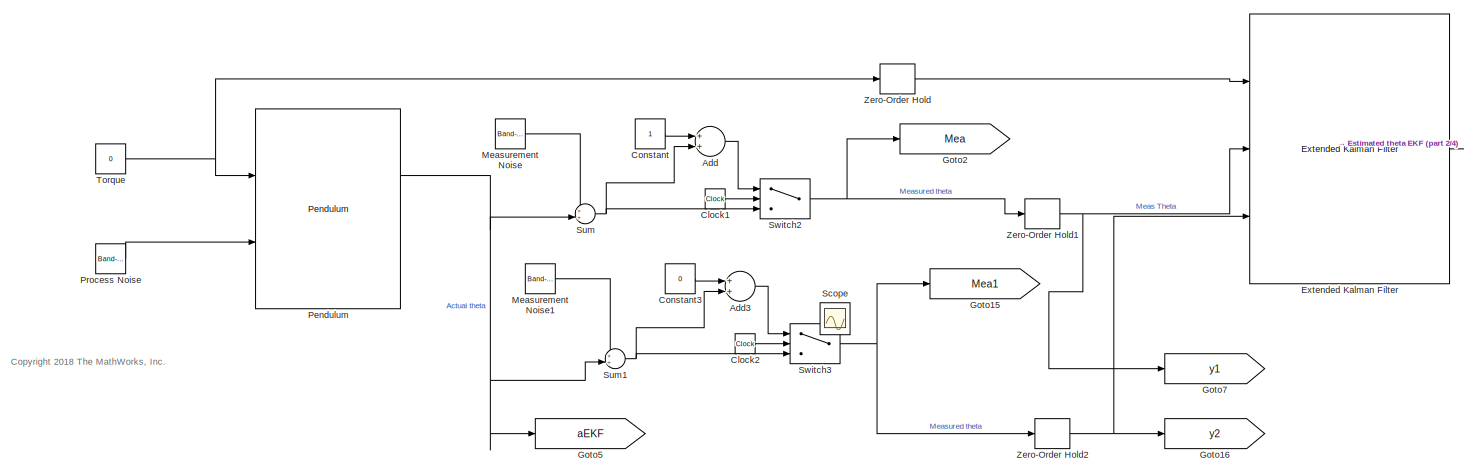
[diagram: root canvas - part 1/4, top left region]
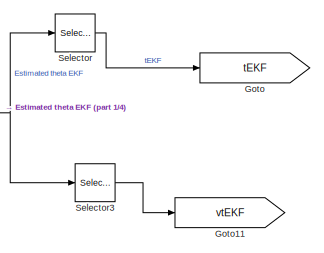
[diagram: root canvas - part 2/4, top center region]
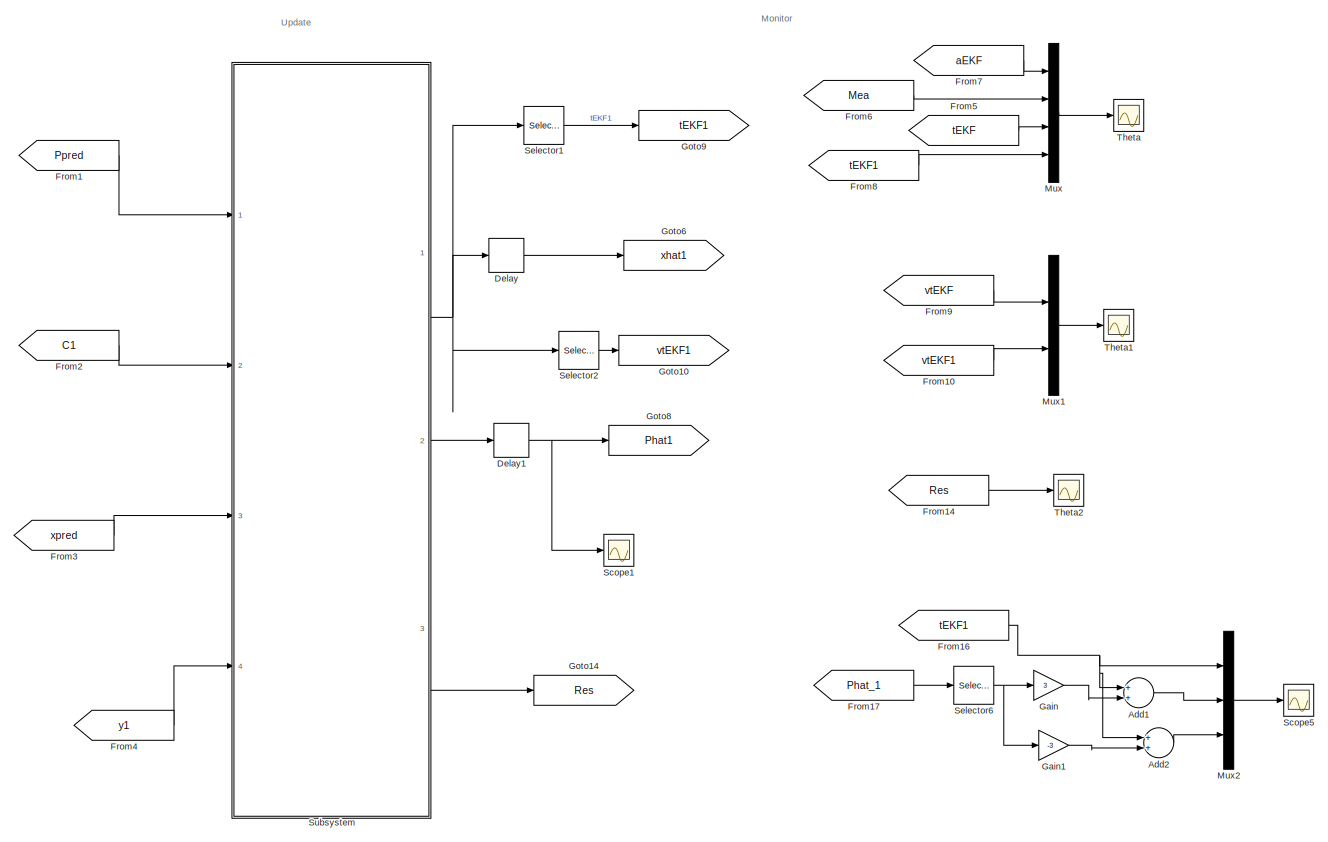
[diagram: root canvas - part 3/4, bottom right region]
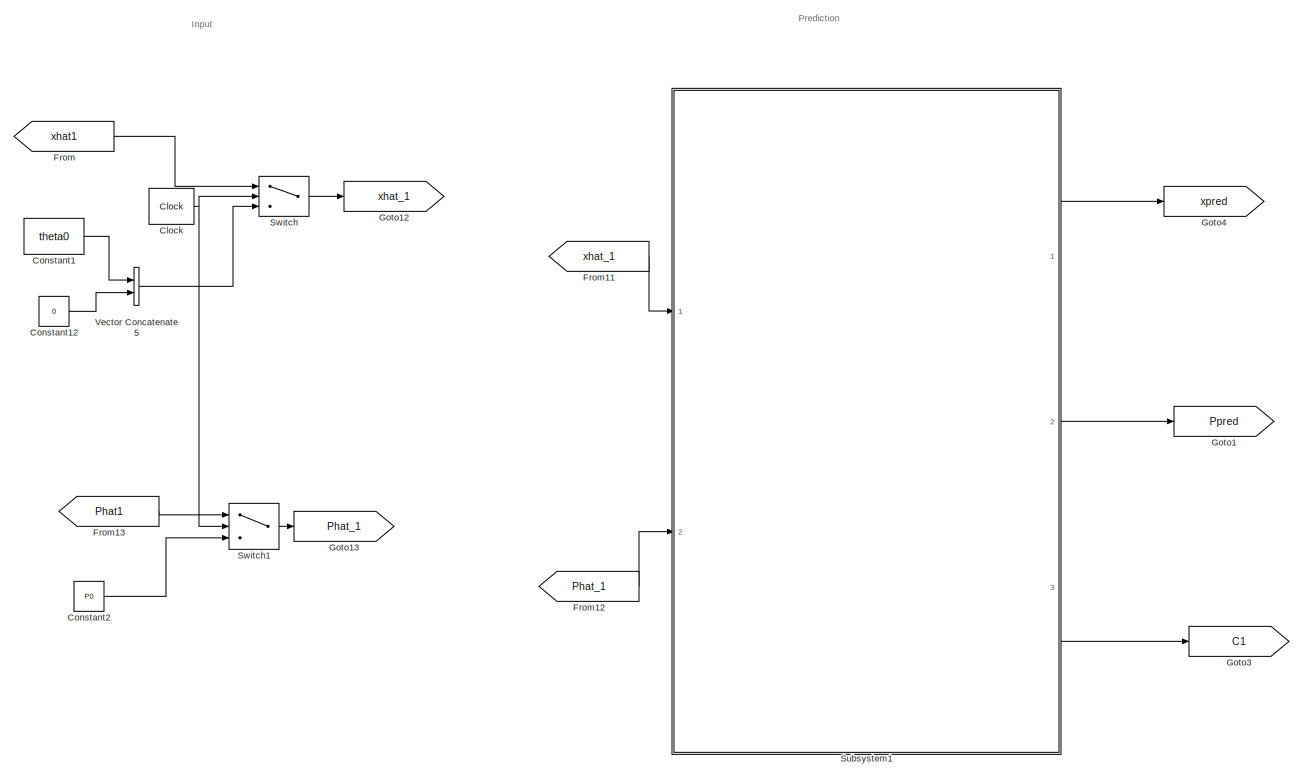
[diagram: root canvas - part 4/4, bottom left region]
MODEL slx_511fa673e2ee
KIND model
CONFIG AbsTol = auto
CONFIG EnableMultiTasking = off
CONFIG FixedStep = 0.001
CONFIG MaxStep = auto
CONFIG MinStep = auto
CONFIG RelTol = 1e-3
CONFIG SampleTimeConstraint = Unconstrained
CONFIG Solver = FixedStepAuto
CONFIG SolverName = FixedStepAuto
CONFIG StartTime = 0.0
CONFIG StopTime = 30
BLOCK [Sum] Add
  InputSameDT = off
  OutDataTypeStr = Inherit: Inherit via internal rule
  Ports = [2, 1]
  SaturateOnIntegerOverflow = off
BLOCK [Sum] Add1
  InputSameDT = off
  OutDataTypeStr = Inherit: Inherit via internal rule
  Ports = [2, 1]
  SaturateOnIntegerOverflow = off
BLOCK [Sum] Add2
  InputSameDT = off
  OutDataTypeStr = Inherit: Inherit via internal rule
  Ports = [2, 1]
  SaturateOnIntegerOverflow = off
BLOCK [Sum] Add3
  InputSameDT = off
  OutDataTypeStr = Inherit: Inherit via internal rule
  Ports = [2, 1]
  SaturateOnIntegerOverflow = off
BLOCK [Clock] Clock
  Decimation = 1000
  DisplayTime = on
BLOCK [Clock] Clock1
BLOCK [Clock] Clock2
BLOCK [Constant] Constant
BLOCK [Constant] Constant1
  Value = theta0
BLOCK [Constant] Constant12
  Value = 0
BLOCK [Constant] Constant2
  Value = P0
BLOCK [Constant] Constant3
  Value = 0
BLOCK [Delay] Delay
  DelayLength = 1
  InputPortMap = u0
  Ports = [1, 1]
  SampleTime = Ts
BLOCK [Delay] Delay1
  DelayLength = 1
  InputPortMap = u0
  Ports = [1, 1]
  SampleTime = Ts
BLOCK [Reference] Extended Kalman Filter  REF=sharedTrackingLibrary/Extended Kalman Filter
  Ports = [3, 1]
  SourceBlock = sharedTrackingLibrary/Extended Kalman Filter
  SourceProductBaseCode = CT
  SourceProductName = Control System Toolbox
  SourceType = Extended Kalman Filter
BLOCK [From] From
  GotoTag = xhat1
BLOCK [From] From1
  GotoTag = Ppred
BLOCK [From] From10
  GotoTag = vtEKF1
BLOCK [From] From11
  GotoTag = xhat_1
BLOCK [From] From12
  GotoTag = Phat_1
BLOCK [From] From13
  GotoTag = Phat1
BLOCK [From] From14
  GotoTag = Res
BLOCK [From] From16
  GotoTag = tEKF1
BLOCK [From] From17
  GotoTag = Phat_1
BLOCK [From] From2
  GotoTag = C1
BLOCK [From] From3
  GotoTag = xpred
BLOCK [From] From4
  GotoTag = y1
BLOCK [From] From5
  GotoTag = tEKF
BLOCK [From] From6
  GotoTag = Mea
BLOCK [From] From7
  GotoTag = aEKF
BLOCK [From] From8
  GotoTag = tEKF1
BLOCK [From] From9
  GotoTag = vtEKF
BLOCK [Gain] Gain
  Gain = 3
  OutDataTypeStr = Inherit: Inherit via internal rule
  ParamDataTypeStr = Inherit: Inherit via internal rule
  SaturateOnIntegerOverflow = off
BLOCK [Gain] Gain1
  Gain = -3
  OutDataTypeStr = Inherit: Inherit via internal rule
  ParamDataTypeStr = Inherit: Inherit via internal rule
  SaturateOnIntegerOverflow = off
BLOCK [Goto] Goto
  GotoTag = tEKF
BLOCK [Goto] Goto1
  GotoTag = Ppred
BLOCK [Goto] Goto10
  GotoTag = vtEKF1
BLOCK [Goto] Goto11
  GotoTag = vtEKF
BLOCK [Goto] Goto12
  GotoTag = xhat_1
BLOCK [Goto] Goto13
  GotoTag = Phat_1
BLOCK [Goto] Goto14
  GotoTag = Res
BLOCK [Goto] Goto15
  GotoTag = Mea1
BLOCK [Goto] Goto16
  GotoTag = y2
BLOCK [Goto] Goto2
  GotoTag = Mea
BLOCK [Goto] Goto3
  GotoTag = C1
BLOCK [Goto] Goto4
  GotoTag = xpred
BLOCK [Goto] Goto5
  GotoTag = aEKF
BLOCK [Goto] Goto6
  GotoTag = xhat1
BLOCK [Goto] Goto7
  GotoTag = y1
BLOCK [Goto] Goto8
  GotoTag = Phat1
BLOCK [Goto] Goto9
  GotoTag = tEKF1
BLOCK [Reference] Measurement Noise  REF=simulink/Sources/Band-Limited
White Noise
  Ports = [0, 1]
  SourceBlock = simulink/Sources/Band-Limited\nWhite Noise
  SourceProductBaseCode = SL
  SourceProductName = Simulink
  SourceType = Band-Limited White Noise.
BLOCK [Reference] Measurement Noise1  REF=simulink/Sources/Band-Limited
White Noise
  Ports = [0, 1]
  SourceBlock = simulink/Sources/Band-Limited\nWhite Noise
  SourceProductBaseCode = SL
  SourceProductName = Simulink
  SourceType = Band-Limited White Noise.
BLOCK [Mux] Mux
  DisplayOption = bar
  Ports = [4, 1]
BLOCK [Mux] Mux1
  DisplayOption = bar
  Inputs = 2
  Ports = [2, 1]
BLOCK [Mux] Mux2
  DisplayOption = bar
  Inputs = 3
  Ports = [3, 1]
BLOCK [Reference] Pendulum  REF=Meldas_Library/Pendulum
  Ports = [2, 2]
  SourceBlock = Meldas_Library/Pendulum
BLOCK [Reference] Process Noise  REF=simulink/Sources/Band-Limited
White Noise
  Ports = [0, 1]
  SourceBlock = simulink/Sources/Band-Limited\nWhite Noise
  SourceProductBaseCode = SL
  SourceProductName = Simulink
  SourceType = Band-Limited White Noise.
BLOCK [Scope] Scope
  Floating = off
  IOType = viewer
  NumInputPorts = 1
  Ports = []
  ScopeSpecificationString = Simulink.scopes.TimeScopeBlockCfg('CurrentConfiguration', extmgr.ConfigurationSet(extmgr.Configuration('Core','General UI',true,'FigureColor',[0.941176470588235 0.941176470588235 0.941176470588235]),extmgr.Configuration('Core','Source UI',true),extmgr.Configuration('Sources','WiredSimulink',true),extmgr.Configuration('Visuals','Time Domain',true,'SerializedDisplays',{struct('MinYLimReal','-83.8359...<+2482ch>
BLOCK [Scope] Scope1
  Floating = off
  NumInputPorts = 1
  Ports = [1]
  ScopeSpecificationString = Simulink.scopes.TimeScopeBlockCfg('CurrentConfiguration', extmgr.ConfigurationSet(extmgr.Configuration('Core','General UI',true),extmgr.Configuration('Core','Source UI',true),extmgr.Configuration('Sources','WiredSimulink',true,'DataLoggingVariableName','ScopeData1'),extmgr.Configuration('Visuals','Time Domain',true,'SerializedDisplays',{struct('MinYLimReal','-0.0017','MaxYLimReal','0.01319','YLabe...<+1423ch>
BLOCK [Scope] Scope5
  Floating = off
  NumInputPorts = 1
  Ports = [1]
  ScopeSpecificationString = Simulink.scopes.TimeScopeBlockCfg('CurrentConfiguration', extmgr.ConfigurationSet(extmgr.Configuration('Core','General UI',true),extmgr.Configuration('Core','Source UI',true),extmgr.Configuration('Sources','WiredSimulink',true,'DataLoggingVariableName','ScopeData16'),extmgr.Configuration('Visuals','Time Domain',true,'SerializedDisplays',{struct('MinYLimReal','1.57413','MaxYLimReal','1.77295','YLab...<+1542ch>
BLOCK [Selector] Selector
  IndexOptions = Index vector (dialog)
  Indices = 1
  InputPortWidth = 2
  OutputSizes = 1
  Ports = [1, 1]
BLOCK [Selector] Selector1
  IndexOptions = Index vector (dialog)
  Indices = 1
  InputPortWidth = 2
  OutputSizes = 1
  Ports = [1, 1]
BLOCK [Selector] Selector2
  IndexOptions = Index vector (dialog)
  Indices = 2
  InputPortWidth = 2
  OutputSizes = 1
  Ports = [1, 1]
BLOCK [Selector] Selector3
  IndexOptions = Index vector (dialog)
  Indices = 2
  InputPortWidth = 2
  OutputSizes = 1
  Ports = [1, 1]
BLOCK [Selector] Selector6
  IndexOptions = Index vector (dialog),Index vector (dialog)
  Indices = 1,1
  InputPortWidth = 3
  NumberOfDimensions = 2
  OutputSizes = 1,1
  Ports = [1, 1]
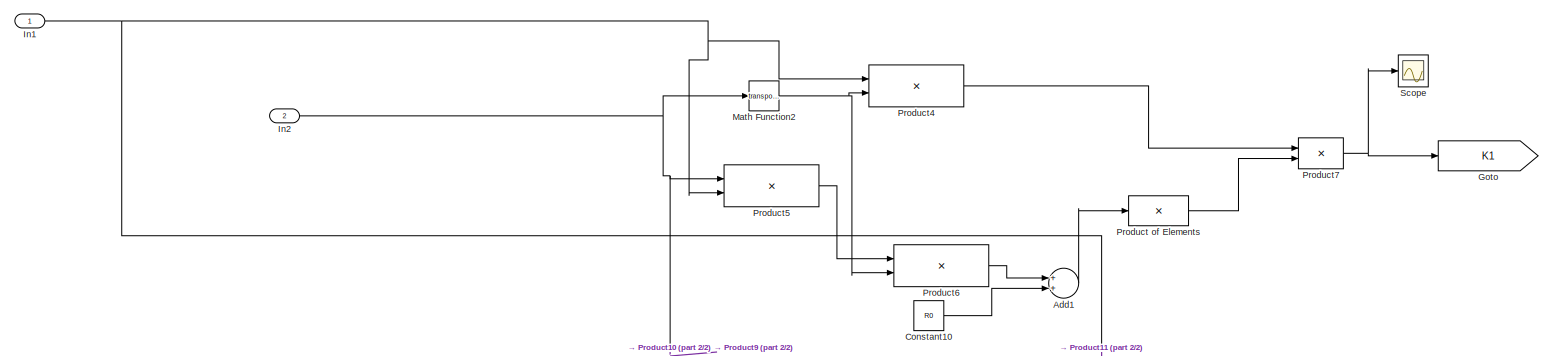
[diagram: Subsystem - part 1/2, full width, top band]
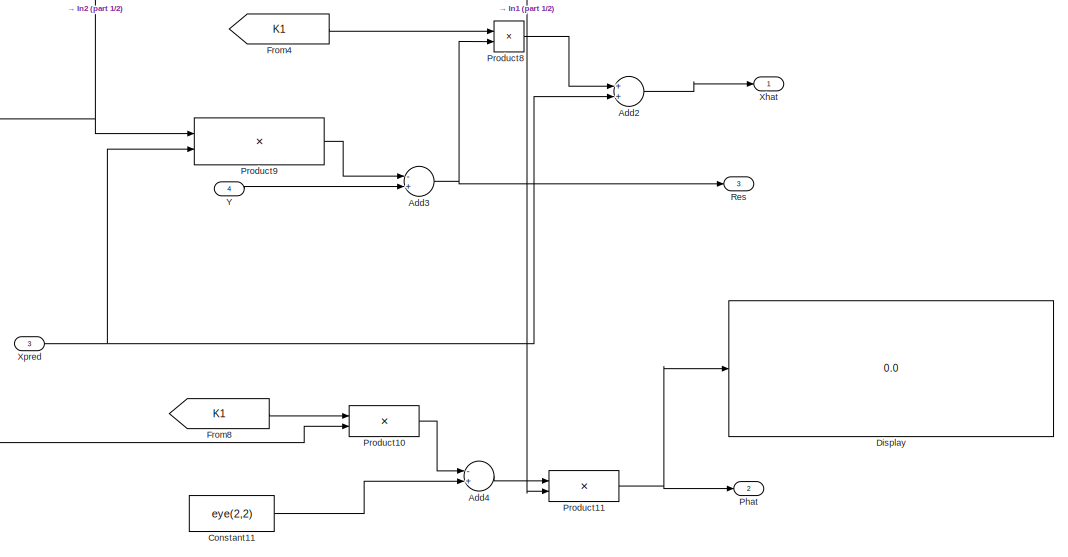
[diagram: Subsystem - part 2/2, bottom right region]
BLOCK [SubSystem] Subsystem
  Ports = [4, 3]
  RequestExecContextInheritance = off
BLOCK [Sum] Subsystem/Add1
  InputSameDT = off
  OutDataTypeStr = Inherit: Inherit via internal rule
  Ports = [2, 1]
  SaturateOnIntegerOverflow = off
BLOCK [Sum] Subsystem/Add2
  InputSameDT = off
  OutDataTypeStr = Inherit: Inherit via internal rule
  Ports = [2, 1]
  SaturateOnIntegerOverflow = off
BLOCK [Sum] Subsystem/Add3
  InputSameDT = off
  Inputs = -+
  OutDataTypeStr = Inherit: Inherit via internal rule
  Ports = [2, 1]
  SaturateOnIntegerOverflow = off
BLOCK [Sum] Subsystem/Add4
  InputSameDT = off
  Inputs = -+
  OutDataTypeStr = Inherit: Inherit via internal rule
  Ports = [2, 1]
  SaturateOnIntegerOverflow = off
BLOCK [Constant] Subsystem/Constant10
  Value = R0
BLOCK [Constant] Subsystem/Constant11
  Value = eye(2,2)
BLOCK [Display] Subsystem/Display
  Decimation = 1
  Ports = [1]
BLOCK [From] Subsystem/From4
  GotoTag = K1
BLOCK [From] Subsystem/From8
  GotoTag = K1
BLOCK [Goto] Subsystem/Goto
  GotoTag = K1
BLOCK [Inport] Subsystem/In1
  IconDisplay = Port number
BLOCK [Inport] Subsystem/In2
  IconDisplay = Port number
  Port = 2
BLOCK [Math] Subsystem/Math Function2
  Operator = transpose
  Ports = [1, 1]
BLOCK [Outport] Subsystem/Phat 
  IconDisplay = Port number
  Port = 2
BLOCK [Product] Subsystem/Product of Elements
  InputSameDT = off
  Inputs = /
  Multiplication = Matrix(*)
  OutDataTypeStr = Inherit: Inherit via internal rule
  Ports = [1, 1]
  RndMeth = Floor
  SaturateOnIntegerOverflow = off
BLOCK [Product] Subsystem/Product10
  InputSameDT = off
  Multiplication = Matrix(*)
  OutDataTypeStr = Inherit: Inherit via internal rule
  Ports = [2, 1]
  RndMeth = Floor
  SaturateOnIntegerOverflow = off
BLOCK [Product] Subsystem/Product11
  InputSameDT = off
  Multiplication = Matrix(*)
  OutDataTypeStr = Inherit: Inherit via internal rule
  Ports = [2, 1]
  RndMeth = Floor
  SaturateOnIntegerOverflow = off
BLOCK [Product] Subsystem/Product4
  InputSameDT = off
  Multiplication = Matrix(*)
  OutDataTypeStr = Inherit: Inherit via internal rule
  Ports = [2, 1]
  RndMeth = Floor
  SaturateOnIntegerOverflow = off
BLOCK [Product] Subsystem/Product5
  InputSameDT = off
  Multiplication = Matrix(*)
  OutDataTypeStr = Inherit: Inherit via internal rule
  Ports = [2, 1]
  RndMeth = Floor
  SaturateOnIntegerOverflow = off
BLOCK [Product] Subsystem/Product6
  InputSameDT = off
  Multiplication = Matrix(*)
  OutDataTypeStr = Inherit: Inherit via internal rule
  Ports = [2, 1]
  RndMeth = Floor
  SaturateOnIntegerOverflow = off
BLOCK [Product] Subsystem/Product7
  InputSameDT = off
  Multiplication = Matrix(*)
  OutDataTypeStr = Inherit: Inherit via internal rule
  Ports = [2, 1]
  RndMeth = Floor
  SaturateOnIntegerOverflow = off
BLOCK [Product] Subsystem/Product8
  InputSameDT = off
  Multiplication = Matrix(*)
  OutDataTypeStr = Inherit: Inherit via internal rule
  Ports = [2, 1]
  RndMeth = Floor
  SaturateOnIntegerOverflow = off
BLOCK [Product] Subsystem/Product9
  InputSameDT = off
  Multiplication = Matrix(*)
  OutDataTypeStr = Inherit: Inherit via internal rule
  Ports = [2, 1]
  RndMeth = Floor
  SaturateOnIntegerOverflow = off
BLOCK [Outport] Subsystem/Res
  IconDisplay = Port number
  Port = 3
  PortDimensions = 1
BLOCK [Scope] Subsystem/Scope
  Floating = off
  NumInputPorts = 1
  Ports = [1]
  ScopeSpecificationString = Simulink.scopes.TimeScopeBlockCfg('CurrentConfiguration', extmgr.ConfigurationSet(extmgr.Configuration('Core','General UI',true),extmgr.Configuration('Core','Source UI',true),extmgr.Configuration('Sources','WiredSimulink',true,'DataLoggingVariableName','ScopeData2'),extmgr.Configuration('Visuals','Time Domain',true,'SerializedDisplays',{struct('MinYLimReal','-1.39762','MaxYLimReal','11.29266','YLa...<+1500ch>
BLOCK [Outport] Subsystem/Xhat
  IconDisplay = Port number
  PortDimensions = [2,1]
BLOCK [Inport] Subsystem/Xpred
  IconDisplay = Port number
  Port = 3
BLOCK [Inport] Subsystem/Y 
  IconDisplay = Port number
  Port = 4
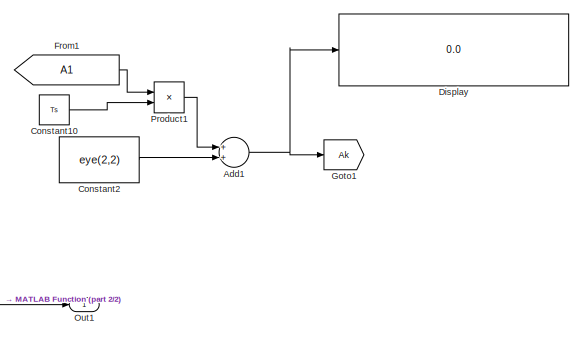
[diagram: Subsystem1 - part 1/2, top right region]
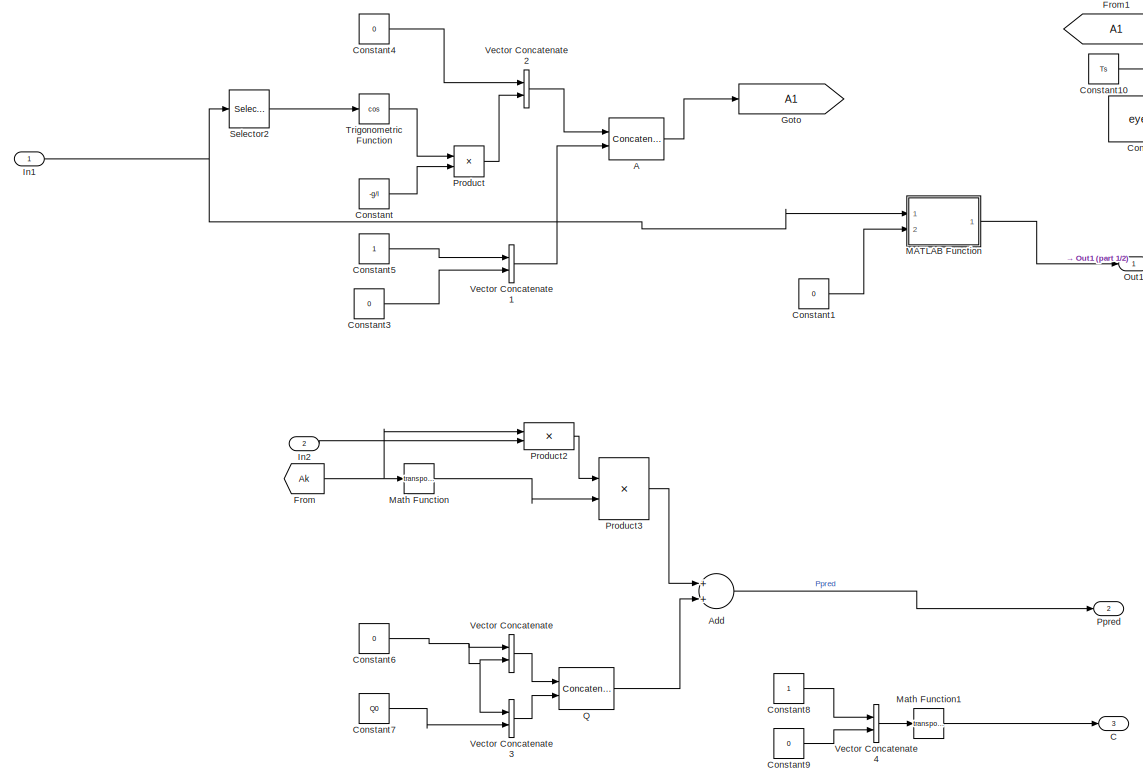
[diagram: Subsystem1 - part 2/2, center side, full height]
BLOCK [SubSystem] Subsystem1
  Ports = [2, 3]
  RequestExecContextInheritance = off
BLOCK [Concatenate] Subsystem1/A
  ConcatenateDimension = 2
  Mode = Multidimensional array
  Ports = [2, 1]
BLOCK [Sum] Subsystem1/Add
  InputSameDT = off
  OutDataTypeStr = Inherit: Inherit via internal rule
  Ports = [2, 1]
  SaturateOnIntegerOverflow = off
BLOCK [Sum] Subsystem1/Add1
  InputSameDT = off
  OutDataTypeStr = Inherit: Inherit via internal rule
  Ports = [2, 1]
  SaturateOnIntegerOverflow = off
BLOCK [Outport] Subsystem1/C 
  IconDisplay = Port number
  Port = 3
BLOCK [Constant] Subsystem1/Constant
  Value = -g/l
BLOCK [Constant] Subsystem1/Constant1
  Value = 0
BLOCK [Constant] Subsystem1/Constant10
  Value = Ts
BLOCK [Constant] Subsystem1/Constant2
  Value = eye(2,2)
BLOCK [Constant] Subsystem1/Constant3
  Value = 0
BLOCK [Constant] Subsystem1/Constant4
  Value = 0
BLOCK [Constant] Subsystem1/Constant5
BLOCK [Constant] Subsystem1/Constant6
  Value = 0
BLOCK [Constant] Subsystem1/Constant7
  Value = Q0
BLOCK [Constant] Subsystem1/Constant8
BLOCK [Constant] Subsystem1/Constant9
  Value = 0
BLOCK [Display] Subsystem1/Display
  Decimation = 1
  Ports = [1]
BLOCK [From] Subsystem1/From
  GotoTag = Ak
BLOCK [From] Subsystem1/From1
  GotoTag = A1
BLOCK [Goto] Subsystem1/Goto
  GotoTag = A1
BLOCK [Goto] Subsystem1/Goto1
  GotoTag = Ak
BLOCK [Inport] Subsystem1/In1
  IconDisplay = Port number
BLOCK [Inport] Subsystem1/In2
  IconDisplay = Port number
  Port = 2
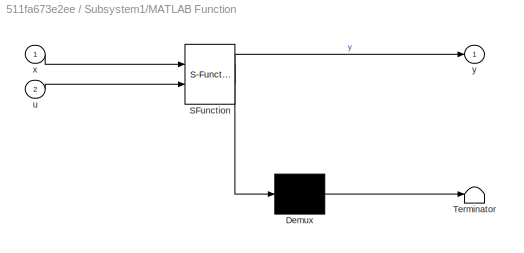
BLOCK [SubSystem] Subsystem1/MATLAB Function
  ErrorFcn = Stateflow.Translate.translate
  PermitHierarchicalResolution = ExplicitOnly
  Ports = [2, 1]
  RequestExecContextInheritance = off
  SFBlockType = MATLAB Function
  TreatAsAtomicUnit = on
BLOCK [Demux] Subsystem1/MATLAB Function/ Demux 
  Outputs = 1
  Ports = [1, 1]
BLOCK [S-Function] Subsystem1/MATLAB Function/ SFunction 
  EnableBusSupport = on
  FunctionName = sf_sfun
  PortCounts = [2 2]
  Ports = [2, 2]
  SFcnIsStateOwnerBlock = off
  SFunctionDeploymentMode = off
  Tag = Stateflow S-Function Kalman_Filter_Simulink_Example_EKF 2
BLOCK [Terminator] Subsystem1/MATLAB Function/ Terminator 
BLOCK [Inport] Subsystem1/MATLAB Function/u
  IconDisplay = Port number
  Port = 2
BLOCK [Inport] Subsystem1/MATLAB Function/x
  IconDisplay = Port number
BLOCK [Outport] Subsystem1/MATLAB Function/y
  IconDisplay = Port number
BLOCK [Math] Subsystem1/Math Function
  Operator = transpose
  Ports = [1, 1]
BLOCK [Math] Subsystem1/Math Function1
  Operator = transpose
  Ports = [1, 1]
BLOCK [Outport] Subsystem1/Out1
  IconDisplay = Port number
BLOCK [Outport] Subsystem1/Ppred
  IconDisplay = Port number
  Port = 2
BLOCK [Product] Subsystem1/Product
  InputSameDT = off
  OutDataTypeStr = Inherit: Inherit via internal rule
  Ports = [2, 1]
  RndMeth = Floor
  SaturateOnIntegerOverflow = off
BLOCK [Product] Subsystem1/Product1
  InputSameDT = off
  OutDataTypeStr = Inherit: Inherit via internal rule
  Ports = [2, 1]
  RndMeth = Floor
  SaturateOnIntegerOverflow = off
BLOCK [Product] Subsystem1/Product2
  InputSameDT = off
  Multiplication = Matrix(*)
  OutDataTypeStr = Inherit: Inherit via internal rule
  Ports = [2, 1]
  RndMeth = Floor
  SaturateOnIntegerOverflow = off
BLOCK [Product] Subsystem1/Product3
  InputSameDT = off
  Multiplication = Matrix(*)
  OutDataTypeStr = Inherit: Inherit via internal rule
  Ports = [2, 1]
  RndMeth = Floor
  SaturateOnIntegerOverflow = off
BLOCK [Concatenate] Subsystem1/Q
  ConcatenateDimension = 2
  Mode = Multidimensional array
  Ports = [2, 1]
BLOCK [Selector] Subsystem1/Selector2
  IndexOptions = Index vector (dialog)
  Indices = 1
  InputPortWidth = 2
  OutputSizes = 1
  Ports = [1, 1]
BLOCK [Trigonometry] Subsystem1/Trigonometric Function
  Operator = cos
  Ports = [1, 1]
BLOCK [Concatenate] Subsystem1/Vector Concatenate
  Ports = [2, 1]
BLOCK [Concatenate] Subsystem1/Vector Concatenate1
  Ports = [2, 1]
BLOCK [Concatenate] Subsystem1/Vector Concatenate2
  Ports = [2, 1]
BLOCK [Concatenate] Subsystem1/Vector Concatenate3
  Ports = [2, 1]
BLOCK [Concatenate] Subsystem1/Vector Concatenate4
  Ports = [2, 1]
BLOCK [Sum] Sum
  IconShape = round
  InputSameDT = off
  Inputs = ++|
  OutDataTypeStr = Inherit: Inherit via internal rule
  Ports = [2, 1]
  SaturateOnIntegerOverflow = off
BLOCK [Sum] Sum1
  IconShape = round
  InputSameDT = off
  Inputs = ++|
  OutDataTypeStr = Inherit: Inherit via internal rule
  Ports = [2, 1]
  SaturateOnIntegerOverflow = off
BLOCK [Switch] Switch
  InputSameDT = off
  SaturateOnIntegerOverflow = off
  Threshold = Ts
BLOCK [Switch] Switch1
  InputSameDT = off
  SaturateOnIntegerOverflow = off
  Threshold = Ts
BLOCK [Switch] Switch2
  Criteria = u2 > Threshold
  InputSameDT = off
  SaturateOnIntegerOverflow = off
  Threshold = 20
BLOCK [Switch] Switch3
  Criteria = u2 > Threshold
  InputSameDT = off
  SaturateOnIntegerOverflow = off
  Threshold = 20
BLOCK [Scope] Theta
  Floating = off
  NumInputPorts = 1
  Ports = [1]
  ScopeSpecificationString = Simulink.scopes.TimeScopeBlockCfg('CurrentConfiguration', extmgr.ConfigurationSet(extmgr.Configuration('Core','General UI',true),extmgr.Configuration('Core','Source UI',true),extmgr.Configuration('Sources','WiredSimulink',true,'DataLoggingVariableName','ScopeData1'),extmgr.Configuration('Visuals','Time Domain',true,'SerializedDisplays',{struct('MinYLimReal','1.48588','MaxYLimReal','1.72677','YLabe...<+1933ch>
BLOCK [Scope] Theta1
  Floating = off
  NumInputPorts = 1
  Ports = [1]
  ScopeSpecificationString = Simulink.scopes.TimeScopeBlockCfg('CurrentConfiguration', extmgr.ConfigurationSet(extmgr.Configuration('Core','General UI',true),extmgr.Configuration('Core','Source UI',true),extmgr.Configuration('Sources','WiredSimulink',true,'DataLoggingVariableName','ScopeData2'),extmgr.Configuration('Visuals','Time Domain',true,'SerializedDisplays',{struct('MinYLimReal','5.83089','MaxYLimReal','6.62417','YLabe...<+1563ch>
BLOCK [Scope] Theta2
  Floating = off
  NumInputPorts = 1
  Ports = [1]
  ScopeSpecificationString = Simulink.scopes.TimeScopeBlockCfg('CurrentConfiguration', extmgr.ConfigurationSet(extmgr.Configuration('Core','General UI',true),extmgr.Configuration('Core','Source UI',true),extmgr.Configuration('Sources','WiredSimulink',true,'DataLoggingVariableName','ScopeData3'),extmgr.Configuration('Visuals','Time Domain',true,'SerializedDisplays',{struct('MinYLimReal','-0.16681','MaxYLimReal','0.71271','YLab...<+1555ch>
BLOCK [Constant] Torque
  Value = 0
BLOCK [Concatenate] Vector Concatenate5
  Ports = [2, 1]
BLOCK [ZeroOrderHold] Zero-Order Hold
  SampleTime = Ts
BLOCK [ZeroOrderHold] Zero-Order Hold1
  SampleTime = Ts
BLOCK [ZeroOrderHold] Zero-Order Hold2
  SampleTime = Ts
ANNOTATION (root): Prediction
ANNOTATION (root): Update
ANNOTATION (root): <copyright redacted>
ANNOTATION (root): Input
ANNOTATION (root): Monitor
LINE Add1:1 -> Mux2:2
LINE Add2:1 -> Mux2:3
LINE Add3:1 -> Switch3:1
LINE Add:1 -> Switch2:1
LINE Clock1:1 -> Switch2:2
LINE Clock2:1 -> Switch3:2
NET Clock:1 -> Switch1:2, Switch:2
LINE Constant12:1 -> Vector Concatenate5:2
LINE Constant1:1 -> Vector Concatenate5:1
LINE Constant2:1 -> Switch1:3
LINE Constant3:1 -> Add3:1
LINE Constant:1 -> Add:1
NET Delay1:1 -> Goto8:1, Scope1:1
LINE Delay:1 -> Goto6:1
NET Extended Kalman Filter:1 -> Selector3:1, Selector:1
LINE From10:1 -> Mux1:2
LINE From11:1 -> Subsystem1:1
LINE From12:1 -> Subsystem1:2
LINE From13:1 -> Switch1:1
LINE From14:1 -> Theta2:1
NET From16:1 -> Add1:1, Add2:1, Mux2:1
LINE From17:1 -> Selector6:1
LINE From1:1 -> Subsystem:1
LINE From2:1 -> Subsystem:2
LINE From3:1 -> Subsystem:3
LINE From4:1 -> Subsystem:4
LINE From5:1 -> Mux:3
LINE From6:1 -> Mux:2
LINE From7:1 -> Mux:1
LINE From8:1 -> Mux:4
LINE From9:1 -> Mux1:1
LINE From:1 -> Switch:1
LINE Gain1:1 -> Add2:2
LINE Gain:1 -> Add1:2
LINE Measurement Noise1:1 -> Sum1:1
LINE Measurement Noise:1 -> Sum:1
LINE Mux1:1 -> Theta1:1
LINE Mux2:1 -> Scope5:1
LINE Mux:1 -> Theta:1
NET Pendulum:1 -> Goto5:1, Sum1:2, Sum:2
LINE Process Noise:1 -> Pendulum:2
LINE Selector1:1 -> Goto9:1
LINE Selector2:1 -> Goto10:1
LINE Selector3:1 -> Goto11:1
NET Selector6:1 -> Gain1:1, Gain:1
LINE Selector:1 -> Goto:1
LINE Subsystem/Add1:1 -> Subsystem/Product of Elements:1
LINE Subsystem/Add2:1 -> Subsystem/Xhat:1
NET Subsystem/Add3:1 -> Subsystem/Product8:2, Subsystem/Res:1
LINE Subsystem/Add4:1 -> Subsystem/Product11:1
LINE Subsystem/Constant10:1 -> Subsystem/Add1:2
LINE Subsystem/Constant11:1 -> Subsystem/Add4:2
LINE Subsystem/From4:1 -> Subsystem/Product8:1
LINE Subsystem/From8:1 -> Subsystem/Product10:1
NET Subsystem/In1:1 -> Subsystem/Product11:2, Subsystem/Product4:1, Subsystem/Product5:2
NET Subsystem/In2:1 -> Subsystem/Math Function2:1, Subsystem/Product10:2, Subsystem/Product5:1, Subsystem/Product9:1
NET Subsystem/Math Function2:1 -> Subsystem/Product4:2, Subsystem/Product6:2
LINE Subsystem/Product of Elements:1 -> Subsystem/Product7:2
LINE Subsystem/Product10:1 -> Subsystem/Add4:1
NET Subsystem/Product11:1 -> Subsystem/Display:1, Subsystem/Phat :1
LINE Subsystem/Product4:1 -> Subsystem/Product7:1
LINE Subsystem/Product5:1 -> Subsystem/Product6:1
LINE Subsystem/Product6:1 -> Subsystem/Add1:1
NET Subsystem/Product7:1 -> Subsystem/Goto:1, Subsystem/Scope:1
LINE Subsystem/Product8:1 -> Subsystem/Add2:1
LINE Subsystem/Product9:1 -> Subsystem/Add3:1
NET Subsystem/Xpred:1 -> Subsystem/Add2:2, Subsystem/Product9:2
LINE Subsystem/Y :1 -> Subsystem/Add3:2
LINE Subsystem1/A:1 -> Subsystem1/Goto:1
NET Subsystem1/Add1:1 -> Subsystem1/Display:1, Subsystem1/Goto1:1
LINE Subsystem1/Add:1 -> Subsystem1/Ppred:1
LINE Subsystem1/Constant10:1 -> Subsystem1/Product1:2
LINE Subsystem1/Constant1:1 -> Subsystem1/MATLAB Function:2
LINE Subsystem1/Constant2:1 -> Subsystem1/Add1:2
LINE Subsystem1/Constant3:1 -> Subsystem1/Vector Concatenate1:2
LINE Subsystem1/Constant4:1 -> Subsystem1/Vector Concatenate2:1
LINE Subsystem1/Constant5:1 -> Subsystem1/Vector Concatenate1:1
NET Subsystem1/Constant6:1 -> Subsystem1/Vector Concatenate3:1, Subsystem1/Vector Concatenate:1, Subsystem1/Vector Concatenate:2
LINE Subsystem1/Constant7:1 -> Subsystem1/Vector Concatenate3:2
LINE Subsystem1/Constant8:1 -> Subsystem1/Vector Concatenate4:1
LINE Subsystem1/Constant9:1 -> Subsystem1/Vector Concatenate4:2
LINE Subsystem1/Constant:1 -> Subsystem1/Product:2
LINE Subsystem1/From1:1 -> Subsystem1/Product1:1
NET Subsystem1/From:1 -> Subsystem1/Math Function:1, Subsystem1/Product2:1
NET Subsystem1/In1:1 -> Subsystem1/MATLAB Function:1, Subsystem1/Selector2:1
LINE Subsystem1/In2:1 -> Subsystem1/Product2:2
LINE Subsystem1/MATLAB Function:1 -> Subsystem1/Out1:1
LINE Subsystem1/Math Function1:1 -> Subsystem1/C :1
LINE Subsystem1/Math Function:1 -> Subsystem1/Product3:2
LINE Subsystem1/Product1:1 -> Subsystem1/Add1:1
LINE Subsystem1/Product2:1 -> Subsystem1/Product3:1
LINE Subsystem1/Product3:1 -> Subsystem1/Add:1
LINE Subsystem1/Product:1 -> Subsystem1/Vector Concatenate2:2
LINE Subsystem1/Q:1 -> Subsystem1/Add:2
LINE Subsystem1/Selector2:1 -> Subsystem1/Trigonometric Function:1
LINE Subsystem1/Trigonometric Function:1 -> Subsystem1/Product:1
LINE Subsystem1/Vector Concatenate1:1 -> Subsystem1/A:2
LINE Subsystem1/Vector Concatenate2:1 -> Subsystem1/A:1
LINE Subsystem1/Vector Concatenate3:1 -> Subsystem1/Q:2
LINE Subsystem1/Vector Concatenate4:1 -> Subsystem1/Math Function1:1
LINE Subsystem1/Vector Concatenate:1 -> Subsystem1/Q:1
LINE Subsystem1:1 -> Goto4:1
LINE Subsystem1:2 -> Goto1:1
LINE Subsystem1:3 -> Goto3:1
NET Subsystem:1 -> Delay:1, Selector1:1, Selector2:1
LINE Subsystem:2 -> Delay1:1
LINE Subsystem:3 -> Goto14:1
NET Sum1:1 -> Add3:2, Switch3:3
NET Sum:1 -> Add:2, Switch2:3
LINE Switch1:1 -> Goto13:1
NET Switch2:1 -> Goto2:1, Zero-Order Hold1:1
NET Switch3:1 -> Goto15:1, Zero-Order Hold2:1
LINE Switch:1 -> Goto12:1
NET Torque:1 -> Pendulum:1, Zero-Order Hold:1
LINE Vector Concatenate5:1 -> Switch:3
NET Zero-Order Hold1:1 -> Extended Kalman Filter:2, Goto7:1
NET Zero-Order Hold2:1 -> Extended Kalman Filter:3, Goto16:1
LINE Zero-Order Hold:1 -> Extended Kalman Filter:1
note: NET lines group one-source signal fan-out (src -> all destinations, sorted); 1:1 wires keep LINE
CHART Subsystem1/MATLAB Function states=1 transitions=1
  STATE_LABEL 'eML_blk_kernel()'
  STATE_LABEL 'SCRIPT:\nfunction y =Trans(x,u)\n\ndt = 0.01;\n\ny= x + [x(2); -9.81/0.5*sin(x(1))+u]*dt;\nend'
